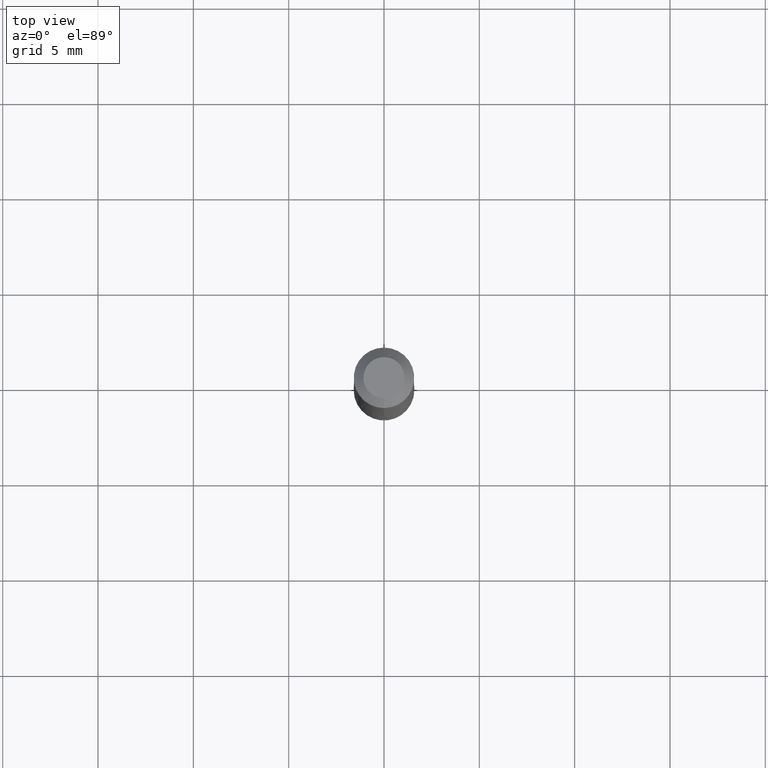
[diagram: clean part render]
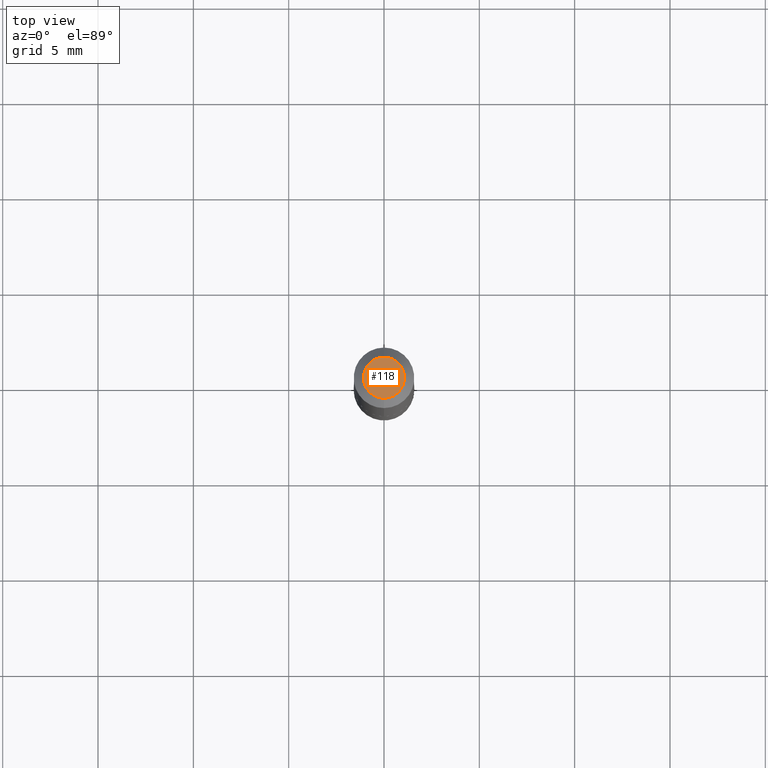
[diagram: same view with one face highlighted and labeled with its STEP entity id]
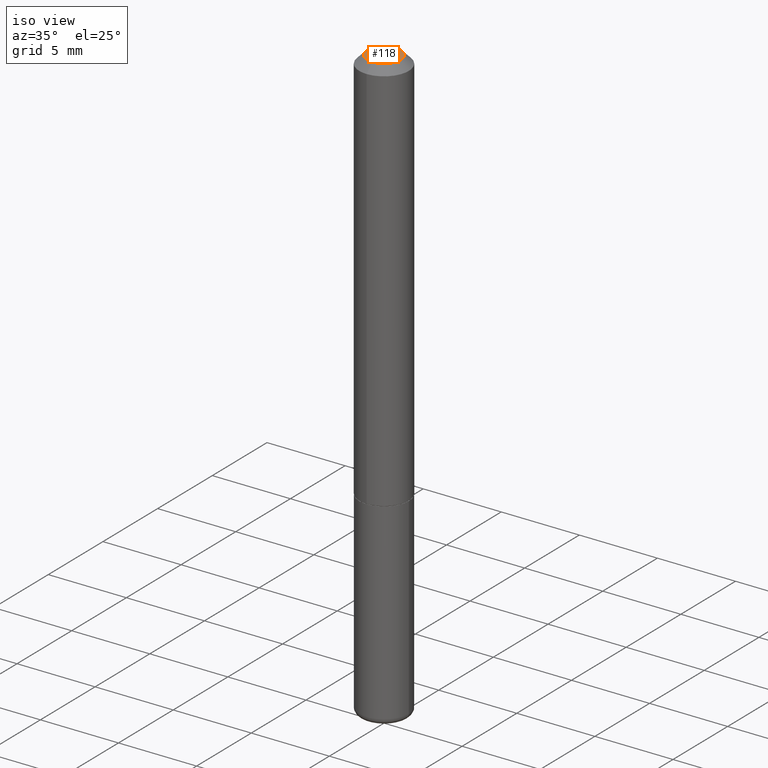
[diagram: same view with one face highlighted and labeled with its STEP entity id]
A machine part, top view. The second image highlights one B-rep face of the part: STEP entity #118.
A second angle (iso view) of the same face is appended — the face is thin or edge-on in the first view.
In plain terms, the highlighted planar face has unit normal (0, -0, -1).
Its self-contained STEP definition (entity closure, byte-faithful):
#32 = DIRECTION ( 'NONE',  ( -6.982962677686265922E-15, -1.000000000000000000, 3.524115163091865618E-15 ) ) ;
#63 = EDGE_CURVE ( 'NONE', #175, #300, #76, .T. ) ;
#76 = CIRCLE ( 'NONE', #417, 0.04250000000000016265 ) ;
#84 = CARTESIAN_POINT ( 'NONE',  ( -3.601761448830055392E-16, -0.04250000000000016265, -4.945825507274390257E-17 ) ) ;
#113 = CARTESIAN_POINT ( 'NONE',  ( 4.826783117839010544E-45, -7.021205631581191590E-31, -1.992331495041487428E-16 ) ) ;
#118 = ADVANCED_FACE ( 'NONE', ( #157 ), #257, .F. ) ;
#136 = DIRECTION ( 'NONE',  ( 2.422680728509237765E-29, -3.524115163091865618E-15, -1.000000000000000000 ) ) ;
#137 = ORIENTED_EDGE ( 'NONE', *, *, #364, .T. ) ;
#138 = CIRCLE ( 'NONE', #202, 0.04250000000000016265 ) ;
#139 = DIRECTION ( 'NONE',  ( 6.982962677686265922E-15, 1.000000000000000000, -3.524115163091865618E-15 ) ) ;
#157 = FACE_OUTER_BOUND ( 'NONE', #346, .T. ) ;
#175 = VERTEX_POINT ( 'NONE', #84 ) ;
#202 = AXIS2_PLACEMENT_3D ( 'NONE', #113, #270, #334 ) ;
#257 = PLANE ( 'NONE',  #341 ) ;
#270 = DIRECTION ( 'NONE',  ( -2.422680728509238326E-29, 3.524115163091865223E-15, 1.000000000000000000 ) ) ;
#291 = CARTESIAN_POINT ( 'NONE',  ( 2.967759138016674396E-16, 0.04250000000000016265, -2.493914691834791931E-16 ) ) ;
#300 = VERTEX_POINT ( 'NONE', #391 ) ;
#334 = DIRECTION ( 'NONE',  ( -6.982962677686265922E-15, -1.000000000000000000, 3.524115163091865618E-15 ) ) ;
#341 = AXIS2_PLACEMENT_3D ( 'NONE', #291, #136, #139 ) ;
#346 = EDGE_LOOP ( 'NONE', ( #137, #410 ) ) ;
#364 = EDGE_CURVE ( 'NONE', #300, #175, #138, .T. ) ;
#391 = CARTESIAN_POINT ( 'NONE',  ( 3.666055405785295545E-16, 0.04250000000000016265, -3.490080439355535768E-16 ) ) ;
#409 = CARTESIAN_POINT ( 'NONE',  ( 4.826783117839010544E-45, -7.021205631581191590E-31, -1.992331495041487428E-16 ) ) ;
#410 = ORIENTED_EDGE ( 'NONE', *, *, #63, .T. ) ;
#412 = DIRECTION ( 'NONE',  ( -2.422680728509238326E-29, 3.524115163091865223E-15, 1.000000000000000000 ) ) ;
#417 = AXIS2_PLACEMENT_3D ( 'NONE', #409, #412, #32 ) ;